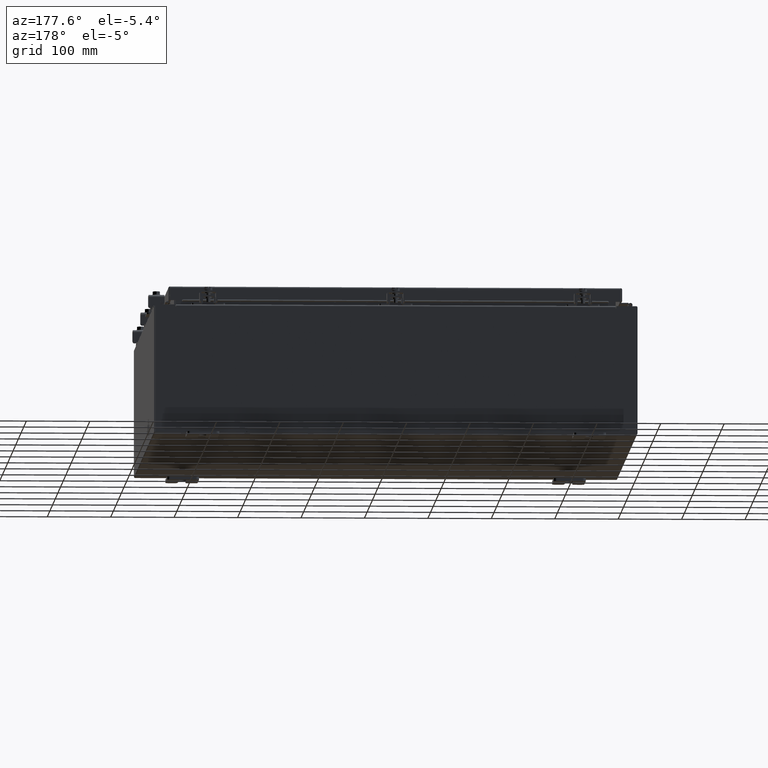
[diagram: clean part render]
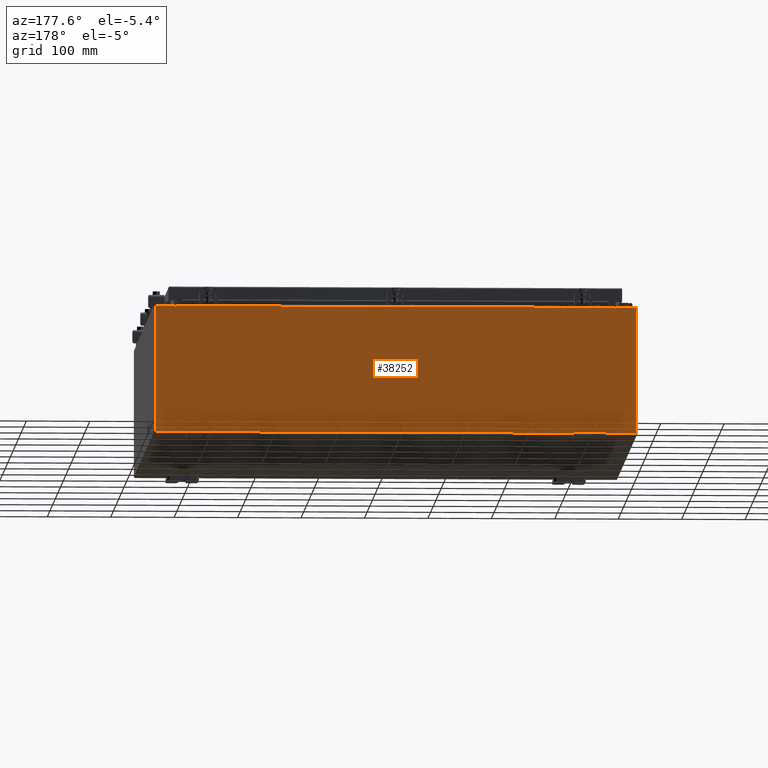
[diagram: same view with one face highlighted and labeled with its STEP entity id]
A machine part, auxiliary view. The second image highlights one B-rep face of the part: STEP entity #38252.
In plain terms, the highlighted planar face has unit normal (0, -1, 0).
Its self-contained STEP definition (entity closure, byte-faithful):
#610 = ORIENTED_EDGE ( 'NONE', *, *, #27891, .T. ) ;
#1201 = EDGE_CURVE ( 'NONE', #15955, #28802, #13629, .T. ) ;
#1488 = VECTOR ( 'NONE', #26068, 39.37007874015748100 ) ;
#1520 = EDGE_CURVE ( 'NONE', #30251, #20967, #10330, .T. ) ;
#1827 = CIRCLE ( 'NONE', #29221, 0.01867499999999949400 ) ;
#1985 = CARTESIAN_POINT ( 'NONE',  ( 13.67455000000000400, 0.0000000000000000000, 3.925299999999999600 ) ) ;
#2496 = ORIENTED_EDGE ( 'NONE', *, *, #19593, .F. ) ;
#2645 = ORIENTED_EDGE ( 'NONE', *, *, #37912, .T. ) ;
#3164 = EDGE_CURVE ( 'NONE', #28802, #20967, #26537, .T. ) ;
#3697 = VECTOR ( 'NONE', #28639, 39.37007874015748100 ) ;
#4251 = PLANE ( 'NONE',  #8969 ) ;
#4473 = VERTEX_POINT ( 'NONE', #1985 ) ;
#4606 = EDGE_CURVE ( 'NONE', #5564, #27087, #17175, .T. ) ;
#5564 = VERTEX_POINT ( 'NONE', #24977 ) ;
#6207 = DIRECTION ( 'NONE',  ( -0.0000000000000000000, 1.000000000000000000, -0.0000000000000000000 ) ) ;
#7066 = LINE ( 'NONE', #37905, #36876 ) ;
#7807 = CARTESIAN_POINT ( 'NONE',  ( 13.63720000000000400, 0.0000000000000000000, 0.0000000000000000000 ) ) ;
#8747 = CARTESIAN_POINT ( 'NONE',  ( -13.63719999999999600, -0.0000000000000000000, 0.0000000000000000000 ) ) ;
#8969 = AXIS2_PLACEMENT_3D ( 'NONE', #22118, #31065, #13231 ) ;
#9474 = AXIS2_PLACEMENT_3D ( 'NONE', #29377, #24658, #27705 ) ;
#10055 = DIRECTION ( 'NONE',  ( 1.000000000000000000, 0.0000000000000000000, 0.0000000000000000000 ) ) ;
#10330 = LINE ( 'NONE', #25384, #1488 ) ;
#10396 = CARTESIAN_POINT ( 'NONE',  ( 13.63720000000000400, 0.0000000000000000000, 3.912299999999999700 ) ) ;
#11602 = CARTESIAN_POINT ( 'NONE',  ( 14.92530000000000200, 0.0000000000000000000, -3.925299999999999600 ) ) ;
#11742 = DIRECTION ( 'NONE',  ( 0.0000000000000000000, 0.0000000000000000000, -1.000000000000000000 ) ) ;
#11745 = CARTESIAN_POINT ( 'NONE',  ( 14.92530000000000200, 0.0000000000000000000, 3.925299999999999600 ) ) ;
#12536 = EDGE_CURVE ( 'NONE', #4473, #15955, #15315, .T. ) ;
#13231 = DIRECTION ( 'NONE',  ( 0.0000000000000000000, -0.0000000000000000000, -1.000000000000000000 ) ) ;
#13629 = CIRCLE ( 'NONE', #9474, 0.01867499999999949400 ) ;
#15167 = VERTEX_POINT ( 'NONE', #33994 ) ;
#15281 = CARTESIAN_POINT ( 'NONE',  ( 13.67454999999983300, -0.0000000000000000000, -5.935537951421816200E-013 ) ) ;
#15315 = LINE ( 'NONE', #15281, #31139 ) ;
#15357 = DIRECTION ( 'NONE',  ( -1.000000000000000000, -0.0000000000000000000, -0.0000000000000000000 ) ) ;
#15548 = ORIENTED_EDGE ( 'NONE', *, *, #29959, .T. ) ;
#15642 = VERTEX_POINT ( 'NONE', #16382 ) ;
#15802 = ORIENTED_EDGE ( 'NONE', *, *, #12536, .F. ) ;
#15858 = LINE ( 'NONE', #30910, #30746 ) ;
#15955 = VERTEX_POINT ( 'NONE', #35720 ) ;
#16217 = ORIENTED_EDGE ( 'NONE', *, *, #4606, .T. ) ;
#16382 = CARTESIAN_POINT ( 'NONE',  ( -14.92529999999999800, 0.0000000000000000000, 3.925299999999999600 ) ) ;
#16473 = VERTEX_POINT ( 'NONE', #38283 ) ;
#16846 = CARTESIAN_POINT ( 'NONE',  ( -14.92529999999999800, 0.0000000000000000000, 3.925299999999999600 ) ) ;
#17175 = LINE ( 'NONE', #11745, #18090 ) ;
#17697 = DIRECTION ( 'NONE',  ( -0.0000000000000000000, -0.0000000000000000000, 1.000000000000000000 ) ) ;
#18090 = VECTOR ( 'NONE', #32587, 39.37007874015748100 ) ;
#18120 = VERTEX_POINT ( 'NONE', #19321 ) ;
#18274 = EDGE_CURVE ( 'NONE', #18120, #16473, #7066, .T. ) ;
#18321 = CARTESIAN_POINT ( 'NONE',  ( -14.92529999999999800, 0.0000000000000000000, -3.925299999999999600 ) ) ;
#19321 = CARTESIAN_POINT ( 'NONE',  ( -13.67454999999999500, 0.0000000000000000000, 3.874949999999999700 ) ) ;
#19464 = FACE_OUTER_BOUND ( 'NONE', #29828, .T. ) ;
#19593 = EDGE_CURVE ( 'NONE', #15167, #18120, #1827, .T. ) ;
#20967 = VERTEX_POINT ( 'NONE', #10396 ) ;
#21046 = ORIENTED_EDGE ( 'NONE', *, *, #36955, .T. ) ;
#21255 = CARTESIAN_POINT ( 'NONE',  ( -13.63719999999999600, 1.024442997624098700E-016, 3.912299999999999700 ) ) ;
#21277 = ORIENTED_EDGE ( 'NONE', *, *, #3164, .F. ) ;
#22118 = CARTESIAN_POINT ( 'NONE',  ( 0.0000000000000000000, 0.0000000000000000000, 0.0000000000000000000 ) ) ;
#23715 = VECTOR ( 'NONE', #17697, 39.37007874015748100 ) ;
#24039 = CARTESIAN_POINT ( 'NONE',  ( -13.65587499999999600, 0.0000000000000000000, 3.874949999999999700 ) ) ;
#24658 = DIRECTION ( 'NONE',  ( -0.0000000000000000000, 1.000000000000000000, -0.0000000000000000000 ) ) ;
#24977 = CARTESIAN_POINT ( 'NONE',  ( 14.92530000000000200, 0.0000000000000000000, 3.925299999999999600 ) ) ;
#25280 = ORIENTED_EDGE ( 'NONE', *, *, #1201, .F. ) ;
#25384 = CARTESIAN_POINT ( 'NONE',  ( -13.63719999999999800, 1.024442997624098700E-016, 3.912299999999999700 ) ) ;
#26020 = VECTOR ( 'NONE', #11742, 39.37007874015748100 ) ;
#26068 = DIRECTION ( 'NONE',  ( 1.000000000000000000, 0.0000000000000000000, 0.0000000000000000000 ) ) ;
#26537 = LINE ( 'NONE', #7807, #3697 ) ;
#27041 = DIRECTION ( 'NONE',  ( 0.0000000000000000000, 0.0000000000000000000, -1.000000000000000000 ) ) ;
#27087 = VERTEX_POINT ( 'NONE', #11602 ) ;
#27570 = VECTOR ( 'NONE', #15357, 39.37007874015748100 ) ;
#27705 = DIRECTION ( 'NONE',  ( 0.0000000000000000000, 0.0000000000000000000, -1.000000000000000000 ) ) ;
#27891 = EDGE_CURVE ( 'NONE', #27087, #35424, #37345, .T. ) ;
#28639 = DIRECTION ( 'NONE',  ( 0.0000000000000000000, 0.0000000000000000000, 1.000000000000000000 ) ) ;
#28802 = VERTEX_POINT ( 'NONE', #35021 ) ;
#29221 = AXIS2_PLACEMENT_3D ( 'NONE', #24039, #6207, #27041 ) ;
#29377 = CARTESIAN_POINT ( 'NONE',  ( 13.65587500000000200, 0.0000000000000000000, 3.874949999999999700 ) ) ;
#29828 = EDGE_LOOP ( 'NONE', ( #31635, #2496, #30521, #37247, #21277, #25280, #15802, #21046, #16217, #610, #2645, #15548 ) ) ;
#29959 = EDGE_CURVE ( 'NONE', #15642, #16473, #38579, .T. ) ;
#30147 = EDGE_CURVE ( 'NONE', #30251, #15167, #32994, .T. ) ;
#30251 = VERTEX_POINT ( 'NONE', #21255 ) ;
#30521 = ORIENTED_EDGE ( 'NONE', *, *, #30147, .F. ) ;
#30673 = VECTOR ( 'NONE', #31804, 39.37007874015748100 ) ;
#30746 = VECTOR ( 'NONE', #10055, 39.37007874015748100 ) ;
#30910 = CARTESIAN_POINT ( 'NONE',  ( -14.92529999999999800, 0.0000000000000000000, 3.925299999999999600 ) ) ;
#31065 = DIRECTION ( 'NONE',  ( 0.0000000000000000000, -1.000000000000000000, 0.0000000000000000000 ) ) ;
#31139 = VECTOR ( 'NONE', #36081, 39.37007874015748100 ) ;
#31635 = ORIENTED_EDGE ( 'NONE', *, *, #18274, .F. ) ;
#31804 = DIRECTION ( 'NONE',  ( 1.000000000000000000, 0.0000000000000000000, 0.0000000000000000000 ) ) ;
#32544 = LINE ( 'NONE', #35518, #23715 ) ;
#32587 = DIRECTION ( 'NONE',  ( 0.0000000000000000000, 0.0000000000000000000, -1.000000000000000000 ) ) ;
#32598 = DIRECTION ( 'NONE',  ( 0.0000000000000000000, 0.0000000000000000000, 1.000000000000000000 ) ) ;
#32994 = LINE ( 'NONE', #8747, #26020 ) ;
#33994 = CARTESIAN_POINT ( 'NONE',  ( -13.63719999999999600, -0.0000000000000000000, 3.874949999999999700 ) ) ;
#34517 = CARTESIAN_POINT ( 'NONE',  ( -14.92529999999999800, 0.0000000000000000000, -3.925299999999999600 ) ) ;
#35021 = CARTESIAN_POINT ( 'NONE',  ( 13.63720000000000400, 0.0000000000000000000, 3.874949999999999700 ) ) ;
#35424 = VERTEX_POINT ( 'NONE', #34517 ) ;
#35518 = CARTESIAN_POINT ( 'NONE',  ( -14.92529999999999800, 0.0000000000000000000, 3.925299999999999600 ) ) ;
#35720 = CARTESIAN_POINT ( 'NONE',  ( 13.67455000000000200, 0.0000000000000000000, 3.874949999999999700 ) ) ;
#36081 = DIRECTION ( 'NONE',  ( -4.340572780400004900E-014, 0.0000000000000000000, -1.000000000000000000 ) ) ;
#36876 = VECTOR ( 'NONE', #32598, 39.37007874015748100 ) ;
#36955 = EDGE_CURVE ( 'NONE', #4473, #5564, #15858, .T. ) ;
#37247 = ORIENTED_EDGE ( 'NONE', *, *, #1520, .T. ) ;
#37345 = LINE ( 'NONE', #18321, #27570 ) ;
#37905 = CARTESIAN_POINT ( 'NONE',  ( -13.67454999999999500, -0.0000000000000000000, 0.0000000000000000000 ) ) ;
#37912 = EDGE_CURVE ( 'NONE', #35424, #15642, #32544, .T. ) ;
#38252 = ADVANCED_FACE ( 'NONE', ( #19464 ), #4251, .F. ) ;
#38283 = CARTESIAN_POINT ( 'NONE',  ( -13.67454999999999500, 0.0000000000000000000, 3.925299999999999600 ) ) ;
#38579 = LINE ( 'NONE', #16846, #30673 ) ;